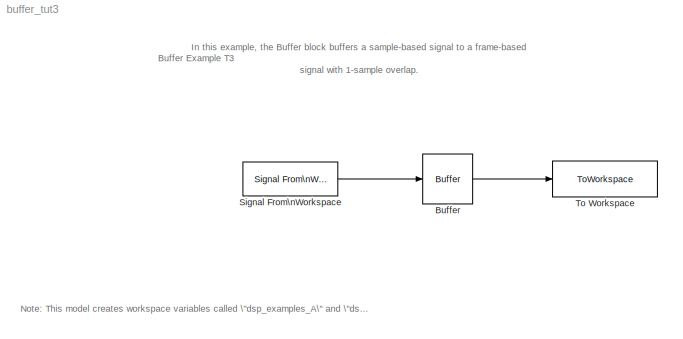
MODEL buffer_tut3
KIND model
CONFIG AbsTol = auto
CONFIG FixedStep = auto
CONFIG MaxStep = auto
CONFIG MinStep = auto
CONFIG PreLoadFcn = dsp_examples_A = [1 1 5 -1;2 1 5 -2;3 0 5 -3;4 0 5 -4;5 1 5 -5;6 1 5 -6];whos dsp_examples_*;
CONFIG RelTol = 1e-3
CONFIG Solver = FixedStepDiscrete
CONFIG SolverMode = Auto
CONFIG StartTime = 0.0
CONFIG StopTime = 10.0
BLOCK [Reference] Buffer  REF=dspbuff3/Buffer
  N = 3
  Ports = [1, 1]
  SourceBlock = dspbuff3/Buffer
  SourceType = Buffer
  V = 1
  ic = 0
BLOCK [Reference] Signal From\nWorkspace  REF=dspsrcs4/Signal From\nWorkspace
  OutputAfterFinalValue = Setting to zero
  Ports = [0, 1]
  SourceBlock = dspsrcs4/Signal From\nWorkspace
  SourceType = Signal From Workspace
  Ts = 1
  X = dsp_examples_A
  nsamps = 1
BLOCK [ToWorkspace] To Workspace
  MaxDataPoints = inf
  SampleTime = -1
  SaveFormat = Array
  VariableName = dsp_examples_yout
ANNOTATION (root): Buffer Example T3
ANNOTATION (root): In this example, the Buffer block buffers a sample-based signal to a frame-based\nsignal with 1-sample overlap.
ANNOTATION (root): Note: This model creates workspace variables called \"dsp_examples_A\" and \"dsp_examples_yout\".
LINE Buffer:1 -> To Workspace:1
LINE Signal From\nWorkspace:1 -> Buffer:1
